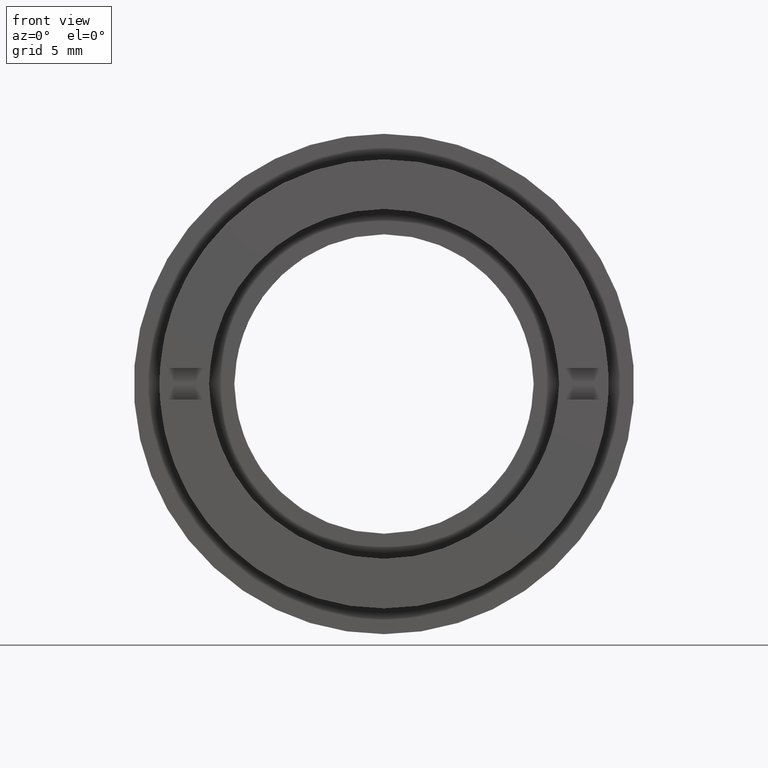
[diagram: clean part render]
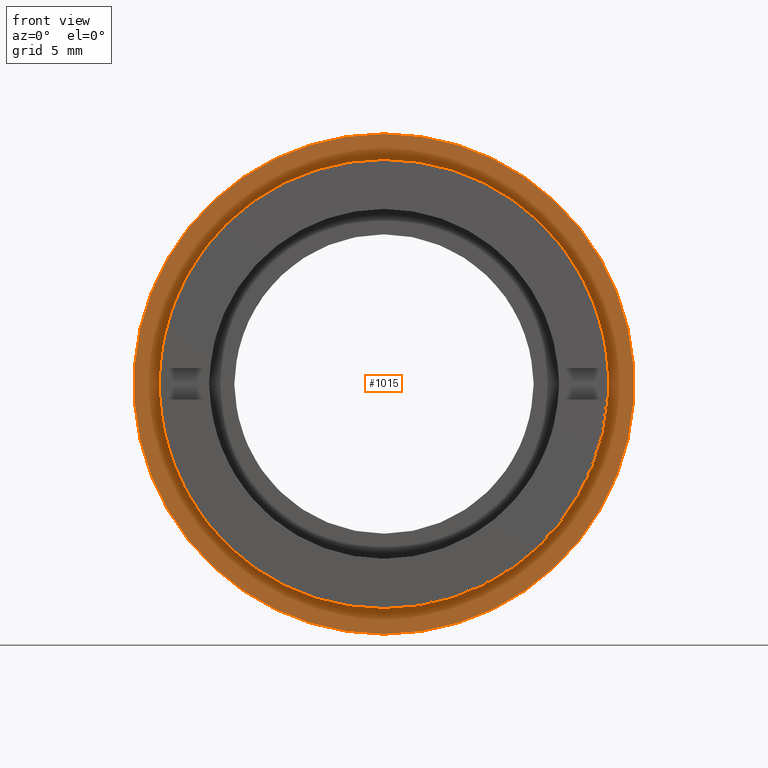
[diagram: same view with one face highlighted and labeled with its STEP entity id]
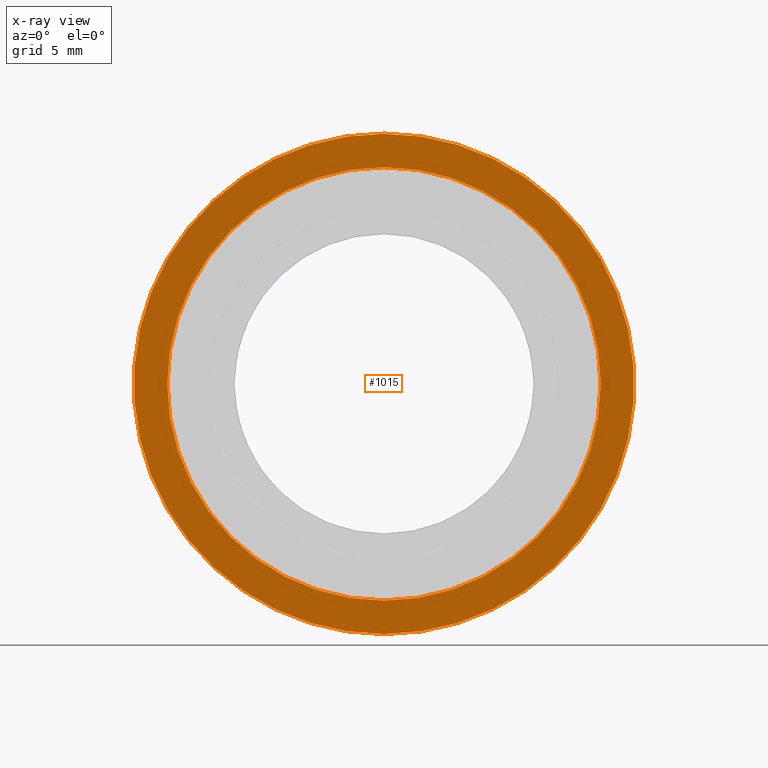
[diagram: x-ray of the same camera — body ghosted, the highlighted face saturated]
A machine part, front view. The second image highlights one B-rep face of the part: STEP entity #1015.
The next image is the same camera in x-ray: the body ghosted, the highlighted face saturated — about 0% of this face is hidden behind the body in this view.
In plain terms, the highlighted planar face has unit normal (0, -1, 0).
Its self-contained STEP definition (entity closure, byte-faithful):
#27 = EDGE_CURVE ( 'NONE', #268, #709, #401, .T. ) ;
#33 = ORIENTED_EDGE ( 'NONE', *, *, #1281, .T. ) ;
#143 = FACE_BOUND ( 'NONE', #791, .T. ) ;
#185 = CARTESIAN_POINT ( 'NONE',  ( 0.0000000000000000000, 5.000000000000000900, 0.0000000000000000000 ) ) ;
#188 = DIRECTION ( 'NONE',  ( -0.0000000000000000000, 1.000000000000000000, -0.0000000000000000000 ) ) ;
#196 = DIRECTION ( 'NONE',  ( 0.0000000000000000000, 0.0000000000000000000, 1.000000000000000000 ) ) ;
#219 = DIRECTION ( 'NONE',  ( -0.0000000000000000000, 1.000000000000000000, -0.0000000000000000000 ) ) ;
#249 = AXIS2_PLACEMENT_3D ( 'NONE', #494, #1238, #465 ) ;
#268 = VERTEX_POINT ( 'NONE', #919 ) ;
#280 = AXIS2_PLACEMENT_3D ( 'NONE', #185, #188, #196 ) ;
#316 = ORIENTED_EDGE ( 'NONE', *, *, #1088, .F. ) ;
#317 = ORIENTED_EDGE ( 'NONE', *, *, #781, .F. ) ;
#322 = CARTESIAN_POINT ( 'NONE',  ( 0.0000000000000000000, 5.000000000000000900, 13.74999999999999800 ) ) ;
#401 = CIRCLE ( 'NONE', #280, 13.74999999999999800 ) ;
#465 = DIRECTION ( 'NONE',  ( 0.0000000000000000000, 0.0000000000000000000, 1.000000000000000000 ) ) ;
#494 = CARTESIAN_POINT ( 'NONE',  ( 0.0000000000000000000, 5.000000000000000900, 0.0000000000000000000 ) ) ;
#516 = FACE_OUTER_BOUND ( 'NONE', #710, .T. ) ;
#518 = CARTESIAN_POINT ( 'NONE',  ( 1.944126793646422800E-015, 5.000000000000000900, -15.87499999999999600 ) ) ;
#553 = CIRCLE ( 'NONE', #1016, 13.74999999999999800 ) ;
#633 = CARTESIAN_POINT ( 'NONE',  ( 0.0000000000000000000, 5.000000000000000900, 15.87499999999999600 ) ) ;
#657 = AXIS2_PLACEMENT_3D ( 'NONE', #829, #1146, #949 ) ;
#659 = PLANE ( 'NONE',  #657 ) ;
#686 = CIRCLE ( 'NONE', #1194, 15.87499999999999600 ) ;
#709 = VERTEX_POINT ( 'NONE', #322 ) ;
#710 = EDGE_LOOP ( 'NONE', ( #317, #316 ) ) ;
#781 = EDGE_CURVE ( 'NONE', #924, #1268, #1240, .T. ) ;
#791 = EDGE_LOOP ( 'NONE', ( #33, #925 ) ) ;
#829 = CARTESIAN_POINT ( 'NONE',  ( -15.87499999999999600, 5.000000000000000000, 0.0000000000000000000 ) ) ;
#919 = CARTESIAN_POINT ( 'NONE',  ( 1.683889348827610500E-015, 5.000000000000000900, -13.74999999999999800 ) ) ;
#924 = VERTEX_POINT ( 'NONE', #633 ) ;
#925 = ORIENTED_EDGE ( 'NONE', *, *, #27, .T. ) ;
#934 = DIRECTION ( 'NONE',  ( 0.0000000000000000000, 0.0000000000000000000, 1.000000000000000000 ) ) ;
#949 = DIRECTION ( 'NONE',  ( 0.0000000000000000000, -0.0000000000000000000, -1.000000000000000000 ) ) ;
#1015 = ADVANCED_FACE ( 'NONE', ( #143, #516 ), #659, .T. ) ;
#1016 = AXIS2_PLACEMENT_3D ( 'NONE', #1141, #219, #934 ) ;
#1088 = EDGE_CURVE ( 'NONE', #1268, #924, #686, .T. ) ;
#1141 = CARTESIAN_POINT ( 'NONE',  ( 0.0000000000000000000, 5.000000000000000900, 0.0000000000000000000 ) ) ;
#1146 = DIRECTION ( 'NONE',  ( 0.0000000000000000000, -1.000000000000000000, 0.0000000000000000000 ) ) ;
#1161 = CARTESIAN_POINT ( 'NONE',  ( 0.0000000000000000000, 5.000000000000000900, 0.0000000000000000000 ) ) ;
#1172 = DIRECTION ( 'NONE',  ( 0.0000000000000000000, 0.0000000000000000000, 1.000000000000000000 ) ) ;
#1194 = AXIS2_PLACEMENT_3D ( 'NONE', #1161, #1295, #1172 ) ;
#1238 = DIRECTION ( 'NONE',  ( -0.0000000000000000000, 1.000000000000000000, -0.0000000000000000000 ) ) ;
#1240 = CIRCLE ( 'NONE', #249, 15.87499999999999600 ) ;
#1268 = VERTEX_POINT ( 'NONE', #518 ) ;
#1281 = EDGE_CURVE ( 'NONE', #709, #268, #553, .T. ) ;
#1295 = DIRECTION ( 'NONE',  ( -0.0000000000000000000, 1.000000000000000000, -0.0000000000000000000 ) ) ;